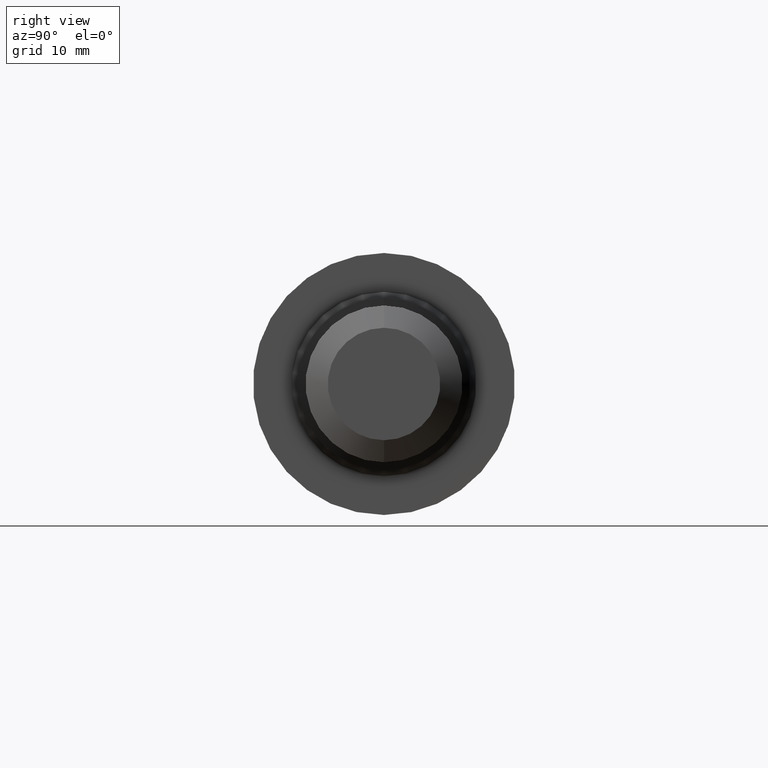
[diagram: clean part render]
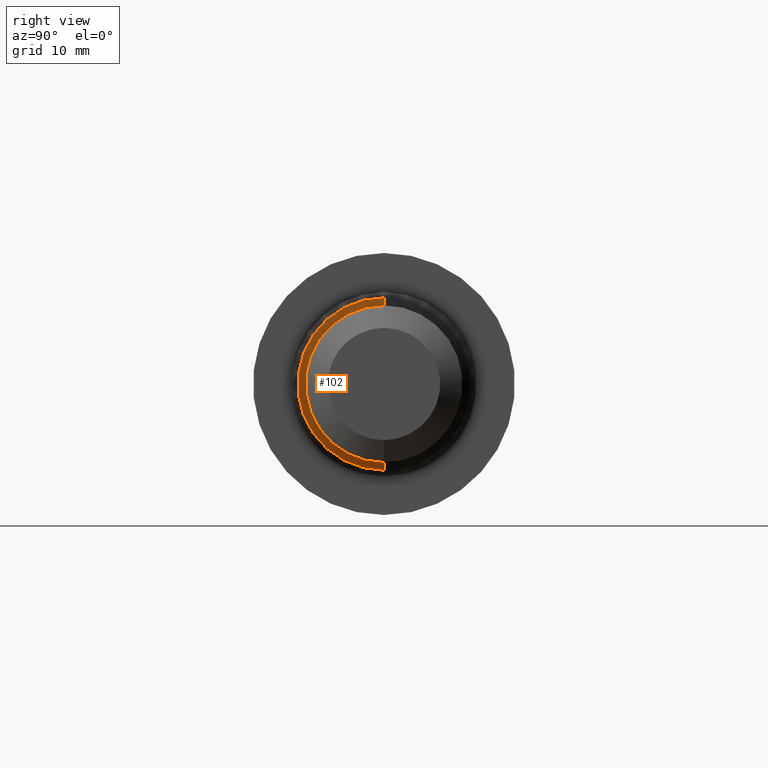
[diagram: same view with one face highlighted and labeled with its STEP entity id]
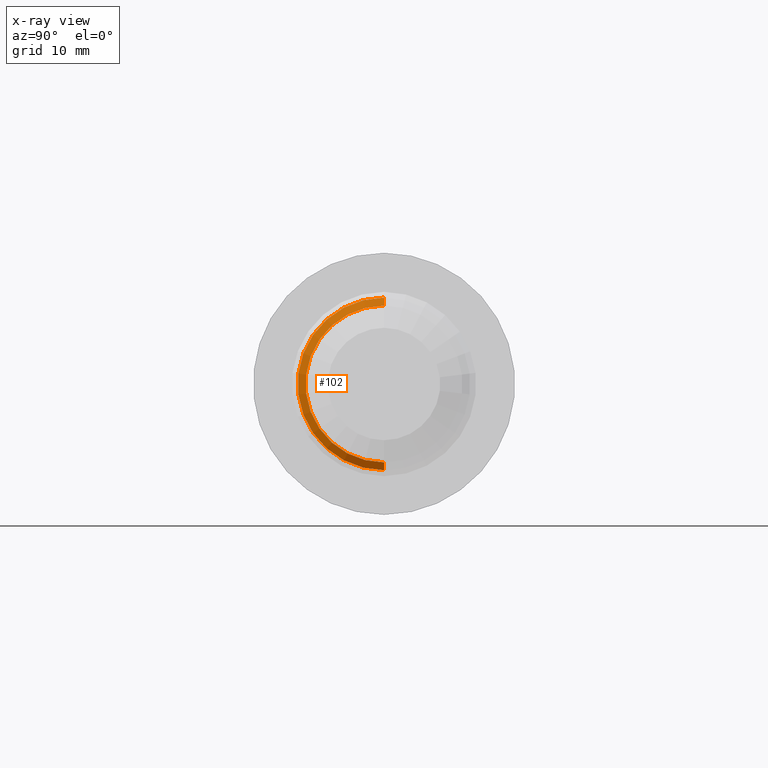
[diagram: x-ray of the same camera — body ghosted, the highlighted face saturated]
A machine part, right view. The second image highlights one B-rep face of the part: STEP entity #102.
The next image is the same camera in x-ray: the body ghosted, the highlighted face saturated — about 0% of this face is hidden behind the body in this view.
In plain terms, the highlighted conical surface has half-angle 45 deg.
Its self-contained STEP definition (entity closure, byte-faithful):
#42 = ORIENTED_EDGE ( 'NONE', *, *, #253, .F. ) ;
#80 = CARTESIAN_POINT ( 'NONE',  ( 3.129773011444504593, 5.994646081826293618E-17, -0.4894999999999999907 ) ) ;
#81 = VECTOR ( 'NONE', #252, 39.37007874015748143 ) ;
#92 = CARTESIAN_POINT ( 'NONE',  ( 3.129773011444504593, 0.0000000000000000000, 0.0000000000000000000 ) ) ;
#102 = ADVANCED_FACE ( 'NONE', ( #264 ), #367, .T. ) ;
#118 = AXIS2_PLACEMENT_3D ( 'NONE', #593, #321, #388 ) ;
#121 = CARTESIAN_POINT ( 'NONE',  ( 3.129773011444504593, 0.0000000000000000000, 0.4894999999999999907 ) ) ;
#122 = VERTEX_POINT ( 'NONE', #461 ) ;
#128 = AXIS2_PLACEMENT_3D ( 'NONE', #638, #472, #585 ) ;
#132 = DIRECTION ( 'NONE',  ( 0.0000000000000000000, 0.0000000000000000000, 1.000000000000000000 ) ) ;
#156 = ORIENTED_EDGE ( 'NONE', *, *, #466, .T. ) ;
#215 = EDGE_CURVE ( 'NONE', #578, #122, #475, .T. ) ;
#252 = DIRECTION ( 'NONE',  ( -0.7071067811865450192, 0.0000000000000000000, 0.7071067811865500152 ) ) ;
#253 = EDGE_CURVE ( 'NONE', #339, #122, #293, .T. ) ;
#264 = FACE_OUTER_BOUND ( 'NONE', #428, .T. ) ;
#293 = CIRCLE ( 'NONE', #128, 0.5382730114445047898 ) ;
#311 = CARTESIAN_POINT ( 'NONE',  ( 3.081000000000000405, 6.818361958712172162E-17, -0.5382730114445047898 ) ) ;
#321 = DIRECTION ( 'NONE',  ( -1.000000000000000000, -0.0000000000000000000, -0.0000000000000000000 ) ) ;
#339 = VERTEX_POINT ( 'NONE', #311 ) ;
#352 = ORIENTED_EDGE ( 'NONE', *, *, #537, .F. ) ;
#359 = CIRCLE ( 'NONE', #118, 0.4894999999999999907 ) ;
#363 = ORIENTED_EDGE ( 'NONE', *, *, #215, .T. ) ;
#367 = CONICAL_SURFACE ( 'NONE', #570, 0.4894999999999999907, 0.7853981633974518317 ) ;
#377 = DIRECTION ( 'NONE',  ( -0.7071067811865450192, 8.659560562354963673E-17, -0.7071067811865500152 ) ) ;
#388 = DIRECTION ( 'NONE',  ( 0.0000000000000000000, 0.0000000000000000000, 1.000000000000000000 ) ) ;
#428 = EDGE_LOOP ( 'NONE', ( #352, #156, #363, #42 ) ) ;
#444 = CARTESIAN_POINT ( 'NONE',  ( 3.129773011444504593, 6.293294643577743942E-17, -0.4894999999999999907 ) ) ;
#446 = DIRECTION ( 'NONE',  ( -1.000000000000000000, -0.0000000000000000000, -0.0000000000000000000 ) ) ;
#461 = CARTESIAN_POINT ( 'NONE',  ( 3.081000000000000405, 0.0000000000000000000, 0.5382730114445047898 ) ) ;
#466 = EDGE_CURVE ( 'NONE', #539, #578, #359, .T. ) ;
#472 = DIRECTION ( 'NONE',  ( -1.000000000000000000, -0.0000000000000000000, -0.0000000000000000000 ) ) ;
#475 = LINE ( 'NONE', #625, #81 ) ;
#537 = EDGE_CURVE ( 'NONE', #539, #339, #587, .T. ) ;
#539 = VERTEX_POINT ( 'NONE', #444 ) ;
#570 = AXIS2_PLACEMENT_3D ( 'NONE', #92, #446, #132 ) ;
#578 = VERTEX_POINT ( 'NONE', #121 ) ;
#585 = DIRECTION ( 'NONE',  ( 0.0000000000000000000, 0.0000000000000000000, 1.000000000000000000 ) ) ;
#587 = LINE ( 'NONE', #80, #597 ) ;
#593 = CARTESIAN_POINT ( 'NONE',  ( 3.129773011444504593, 0.0000000000000000000, 0.0000000000000000000 ) ) ;
#597 = VECTOR ( 'NONE', #377, 39.37007874015748143 ) ;
#625 = CARTESIAN_POINT ( 'NONE',  ( 3.129773011444504593, 0.0000000000000000000, 0.4894999999999999907 ) ) ;
#638 = CARTESIAN_POINT ( 'NONE',  ( 3.081000000000000405, 0.0000000000000000000, 0.0000000000000000000 ) ) ;